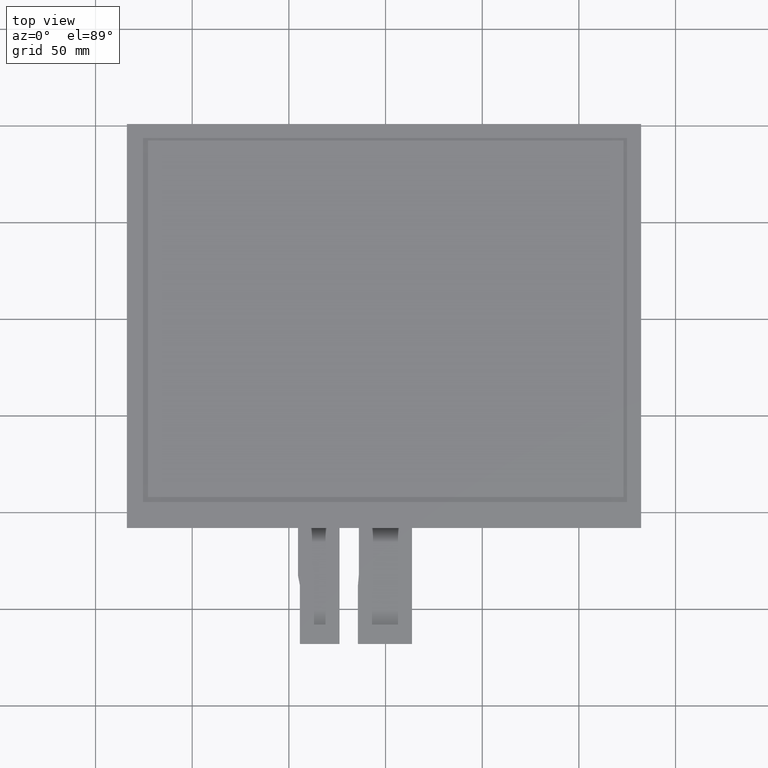
[diagram: clean part render]
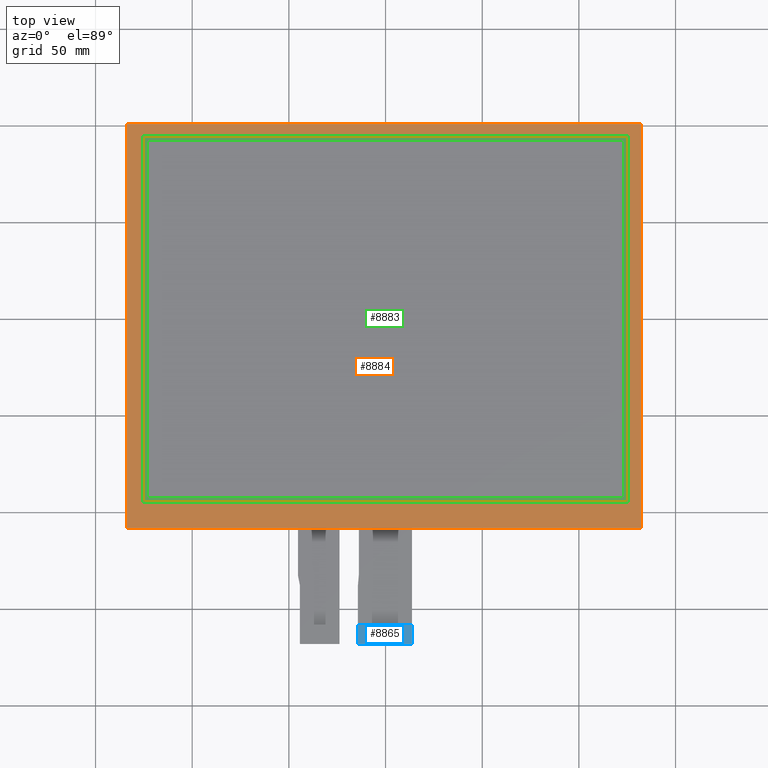
[diagram: same view with three faces highlighted in distinct colors, each labeled with its STEP entity id]
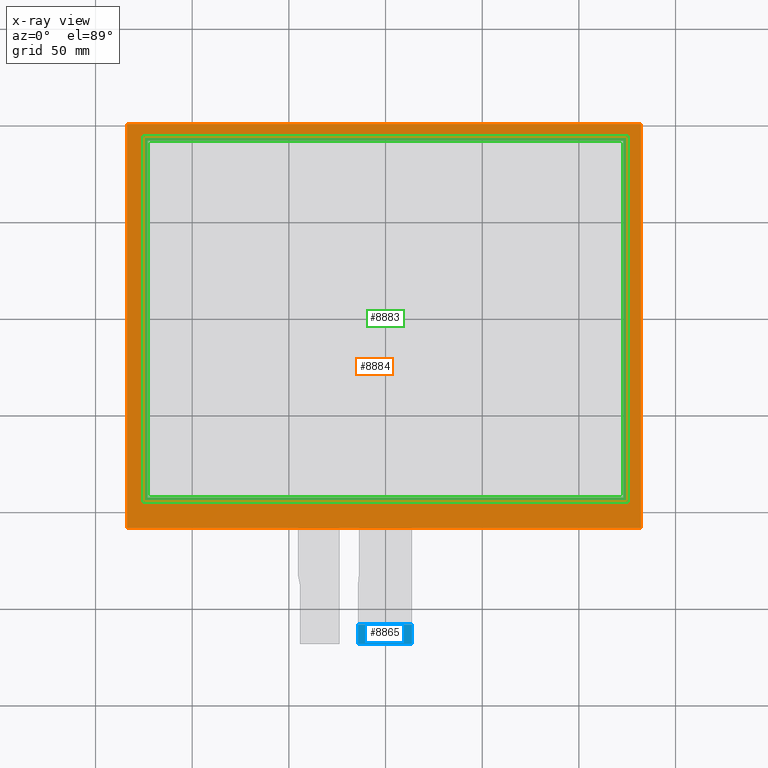
[diagram: x-ray of the same camera — body ghosted, the three highlighted faces saturated]
A machine part, top view with three faces highlighted in distinct colors.
The next image is the same camera in x-ray (body ghosted, the three faces saturated) — at least one of them is partly hidden behind the body in this view.
Their STEP definitions:

[orange] entity #8884 — the highlighted planar face has unit normal (0, 0, 1).
#132=FACE_BOUND('',#1392,.T.);
#546=PLANE('',#9334);
#968=FACE_OUTER_BOUND('',#1391,.T.);
#1391=EDGE_LOOP('',(#8425,#8426,#8427,#8428));
#1392=EDGE_LOOP('',(#8429,#8430,#8431,#8432));
#2617=LINE('',#13897,#3857);
#2621=LINE('',#13905,#3861);
#2624=LINE('',#13911,#3864);
#2627=LINE('',#13916,#3867);
#2629=LINE('',#13922,#3869);
#2630=LINE('',#13924,#3870);
#2631=LINE('',#13926,#3871);
#2632=LINE('',#13927,#3872);
#3857=VECTOR('',#11397,10.);
#3861=VECTOR('',#11403,10.);
#3864=VECTOR('',#11408,10.);
#3867=VECTOR('',#11413,10.);
#3869=VECTOR('',#11419,10.);
#3870=VECTOR('',#11420,10.);
#3871=VECTOR('',#11421,10.);
#3872=VECTOR('',#11422,10.);
#4705=VERTEX_POINT('',#13895);
#4706=VERTEX_POINT('',#13896);
#4709=VERTEX_POINT('',#13904);
#4711=VERTEX_POINT('',#13910);
#4713=VERTEX_POINT('',#13920);
#4714=VERTEX_POINT('',#13921);
#4715=VERTEX_POINT('',#13923);
#4716=VERTEX_POINT('',#13925);
#5945=EDGE_CURVE('',#4705,#4706,#2617,.T.);
#5949=EDGE_CURVE('',#4709,#4705,#2621,.T.);
#5952=EDGE_CURVE('',#4711,#4709,#2624,.T.);
#5955=EDGE_CURVE('',#4706,#4711,#2627,.T.);
#5957=EDGE_CURVE('',#4713,#4714,#2629,.T.);
#5958=EDGE_CURVE('',#4714,#4715,#2630,.T.);
#5959=EDGE_CURVE('',#4715,#4716,#2631,.T.);
#5960=EDGE_CURVE('',#4716,#4713,#2632,.T.);
#8425=ORIENTED_EDGE('',*,*,#5957,.T.);
#8426=ORIENTED_EDGE('',*,*,#5958,.T.);
#8427=ORIENTED_EDGE('',*,*,#5959,.T.);
#8428=ORIENTED_EDGE('',*,*,#5960,.T.);
#8429=ORIENTED_EDGE('',*,*,#5945,.T.);
#8430=ORIENTED_EDGE('',*,*,#5955,.T.);
#8431=ORIENTED_EDGE('',*,*,#5952,.T.);
#8432=ORIENTED_EDGE('',*,*,#5949,.T.);
#8884=ADVANCED_FACE('',(#968,#132),#546,.T.);
#9334=AXIS2_PLACEMENT_3D('',#13919,#11417,#11418);
#11397=DIRECTION('',(-1.87577279767714E-16,1.,0.));
#11403=DIRECTION('',(-1.,-1.41655250350897E-16,0.));
#11408=DIRECTION('',(9.37886398838569E-17,-1.,0.));
#11413=DIRECTION('',(1.,0.,0.));
#11417=DIRECTION('center_axis',(0.,0.,1.));
#11418=DIRECTION('ref_axis',(1.,0.,0.));
#11419=DIRECTION('',(-1.,0.,0.));
#11420=DIRECTION('',(1.69986300421077E-16,-1.,0.));
#11421=DIRECTION('',(1.,2.0034099692484E-16,0.));
#11422=DIRECTION('',(0.,1.,0.));
#13895=CARTESIAN_POINT('',(-125.4,-94.65,0.));
#13896=CARTESIAN_POINT('',(-125.4,94.75,0.));
#13897=CARTESIAN_POINT('',(-125.4,-49.1,0.));
#13904=CARTESIAN_POINT('',(125.4,-94.65,0.));
#13905=CARTESIAN_POINT('',(62.3,-94.65,0.));
#13910=CARTESIAN_POINT('',(125.4,94.75,0.));
#13911=CARTESIAN_POINT('',(125.4,45.6,0.));
#13916=CARTESIAN_POINT('',(-63.1,94.75,0.));
#13919=CARTESIAN_POINT('Origin',(-0.800000000000018,-3.54999999999998,0.));
#13920=CARTESIAN_POINT('',(132.2,100.95,0.));
#13921=CARTESIAN_POINT('',(-133.8,100.95,0.));
#13922=CARTESIAN_POINT('',(132.2,100.95,0.));
#13923=CARTESIAN_POINT('',(-133.8,-108.05,0.));
#13924=CARTESIAN_POINT('',(-133.8,100.95,0.));
#13925=CARTESIAN_POINT('',(132.2,-108.05,0.));
#13926=CARTESIAN_POINT('',(-133.8,-108.05,0.));
#13927=CARTESIAN_POINT('',(132.2,-108.05,0.));

[blue] entity #8865 — the highlighted planar face has unit normal (0, 0, 1).
#527=PLANE('',#9315);
#949=FACE_OUTER_BOUND('',#1371,.T.);
#1371=EDGE_LOOP('',(#8333,#8334,#8335,#8336,#8337,#8338));
#1794=LINE('',#12245,#3034);
#1805=LINE('',#12271,#3045);
#2581=LINE('',#13824,#3821);
#2587=LINE('',#13834,#3827);
#3034=VECTOR('',#9760,10.);
#3045=VECTOR('',#9781,10.);
#3821=VECTOR('',#11329,10.);
#3827=VECTOR('',#11337,10.);
#3885=CIRCLE('',#8920,0.2);
#3887=CIRCLE('',#8925,0.2);
#4059=VERTEX_POINT('',#11792);
#4060=VERTEX_POINT('',#11793);
#4284=VERTEX_POINT('',#12243);
#4287=VERTEX_POINT('',#12253);
#4294=VERTEX_POINT('',#12269);
#4685=VERTEX_POINT('',#13823);
#4894=EDGE_CURVE('',#4059,#4060,#3885,.T.);
#5120=EDGE_CURVE('',#4059,#4284,#1794,.T.);
#5124=EDGE_CURVE('',#4287,#4284,#3887,.T.);
#5133=EDGE_CURVE('',#4287,#4294,#1805,.T.);
#5909=EDGE_CURVE('',#4685,#4060,#2581,.T.);
#5915=EDGE_CURVE('',#4294,#4685,#2587,.T.);
#8333=ORIENTED_EDGE('',*,*,#4894,.F.);
#8334=ORIENTED_EDGE('',*,*,#5120,.T.);
#8335=ORIENTED_EDGE('',*,*,#5124,.F.);
#8336=ORIENTED_EDGE('',*,*,#5133,.T.);
#8337=ORIENTED_EDGE('',*,*,#5915,.T.);
#8338=ORIENTED_EDGE('',*,*,#5909,.T.);
#8865=ADVANCED_FACE('',(#949),#527,.T.);
#8920=AXIS2_PLACEMENT_3D('',#11794,#9530,#9531);
#8925=AXIS2_PLACEMENT_3D('',#12254,#9768,#9769);
#9315=AXIS2_PLACEMENT_3D('',#13835,#11338,#11339);
#9530=DIRECTION('center_axis',(0.,0.,-1.));
#9531=DIRECTION('ref_axis',(-0.707106781186493,-0.707106781186602,0.));
#9760=DIRECTION('',(1.,0.,0.));
#9768=DIRECTION('center_axis',(0.,0.,-1.));
#9769=DIRECTION('ref_axis',(0.707106781186493,-0.707106781186602,0.));
#9781=DIRECTION('',(0.,1.,0.));
#11329=DIRECTION('',(2.22044604925031E-16,-1.,0.));
#11337=DIRECTION('',(-1.,0.,0.));
#11338=DIRECTION('center_axis',(0.,0.,1.));
#11339=DIRECTION('ref_axis',(1.,0.,0.));
#11792=CARTESIAN_POINT('',(-14.1,-168.05,-0.8));
#11793=CARTESIAN_POINT('',(-14.3,-167.85,-0.8));
#11794=CARTESIAN_POINT('Origin',(-14.1,-167.85,-0.8));
#12243=CARTESIAN_POINT('',(13.5,-168.05,-0.8));
#12245=CARTESIAN_POINT('',(-14.3,-168.05,-0.8));
#12253=CARTESIAN_POINT('',(13.7,-167.85,-0.8));
#12254=CARTESIAN_POINT('Origin',(13.5,-167.85,-0.8));
#12269=CARTESIAN_POINT('',(13.7,-158.05,-0.8));
#12271=CARTESIAN_POINT('',(13.7,-168.05,-0.8));
#13823=CARTESIAN_POINT('',(-14.3,-158.05,-0.8));
#13824=CARTESIAN_POINT('',(-14.3,-158.05,-0.8));
#13834=CARTESIAN_POINT('',(13.7,-158.05,-0.8));
#13835=CARTESIAN_POINT('Origin',(-0.299999999999994,-163.05,-0.8));

[green] entity #8883 — the highlighted planar face has unit normal (0, 0, -1).
#131=FACE_BOUND('',#1390,.T.);
#545=PLANE('',#9333);
#967=FACE_OUTER_BOUND('',#1389,.T.);
#1389=EDGE_LOOP('',(#8417,#8418,#8419,#8420));
#1390=EDGE_LOOP('',(#8421,#8422,#8423,#8424));
#2607=LINE('',#13877,#3847);
#2611=LINE('',#13884,#3851);
#2614=LINE('',#13890,#3854);
#2616=LINE('',#13893,#3856);
#2619=LINE('',#13901,#3859);
#2623=LINE('',#13908,#3863);
#2626=LINE('',#13914,#3866);
#2628=LINE('',#13917,#3868);
#3847=VECTOR('',#11379,10.);
#3851=VECTOR('',#11385,10.);
#3854=VECTOR('',#11390,10.);
#3856=VECTOR('',#11394,10.);
#3859=VECTOR('',#11399,10.);
#3863=VECTOR('',#11405,10.);
#3866=VECTOR('',#11410,10.);
#3868=VECTOR('',#11414,10.);
#4699=VERTEX_POINT('',#13874);
#4700=VERTEX_POINT('',#13876);
#4702=VERTEX_POINT('',#13882);
#4704=VERTEX_POINT('',#13888);
#4707=VERTEX_POINT('',#13898);
#4708=VERTEX_POINT('',#13900);
#4710=VERTEX_POINT('',#13906);
#4712=VERTEX_POINT('',#13912);
#5935=EDGE_CURVE('',#4699,#4700,#2607,.T.);
#5939=EDGE_CURVE('',#4702,#4699,#2611,.T.);
#5942=EDGE_CURVE('',#4704,#4702,#2614,.T.);
#5944=EDGE_CURVE('',#4700,#4704,#2616,.T.);
#5947=EDGE_CURVE('',#4707,#4708,#2619,.T.);
#5951=EDGE_CURVE('',#4710,#4707,#2623,.T.);
#5954=EDGE_CURVE('',#4712,#4710,#2626,.T.);
#5956=EDGE_CURVE('',#4708,#4712,#2628,.T.);
#8417=ORIENTED_EDGE('',*,*,#5956,.F.);
#8418=ORIENTED_EDGE('',*,*,#5947,.F.);
#8419=ORIENTED_EDGE('',*,*,#5951,.F.);
#8420=ORIENTED_EDGE('',*,*,#5954,.F.);
#8421=ORIENTED_EDGE('',*,*,#5944,.F.);
#8422=ORIENTED_EDGE('',*,*,#5935,.F.);
#8423=ORIENTED_EDGE('',*,*,#5939,.F.);
#8424=ORIENTED_EDGE('',*,*,#5942,.F.);
#8883=ADVANCED_FACE('',(#967,#131),#545,.F.);
#9333=AXIS2_PLACEMENT_3D('',#13918,#11415,#11416);
#11379=DIRECTION('',(1.,0.,0.));
#11385=DIRECTION('',(0.,-1.,0.));
#11390=DIRECTION('',(-1.,0.,0.));
#11394=DIRECTION('',(0.,1.,0.));
#11399=DIRECTION('',(-1.87577279767714E-16,1.,0.));
#11405=DIRECTION('',(-1.,-1.41655250350897E-16,0.));
#11410=DIRECTION('',(9.37886398838569E-17,-1.,0.));
#11414=DIRECTION('',(1.,0.,0.));
#11415=DIRECTION('center_axis',(0.,0.,-1.));
#11416=DIRECTION('ref_axis',(-1.,0.,0.));
#13874=CARTESIAN_POINT('',(-123.,-92.25,-0.1));
#13876=CARTESIAN_POINT('',(123.,-92.25,-0.1));
#13877=CARTESIAN_POINT('',(123.,-92.25,-0.1));
#13882=CARTESIAN_POINT('',(-123.,92.25,-0.1));
#13884=CARTESIAN_POINT('',(-123.,-92.25,-0.1));
#13888=CARTESIAN_POINT('',(123.,92.25,-0.1));
#13890=CARTESIAN_POINT('',(-123.,92.25,-0.1));
#13893=CARTESIAN_POINT('',(123.,92.25,-0.1));
#13898=CARTESIAN_POINT('',(-125.4,-94.65,-0.1));
#13900=CARTESIAN_POINT('',(-125.4,94.75,-0.1));
#13901=CARTESIAN_POINT('',(-125.4,94.75,-0.1));
#13906=CARTESIAN_POINT('',(125.4,-94.65,-0.1));
#13908=CARTESIAN_POINT('',(-125.4,-94.65,-0.1));
#13912=CARTESIAN_POINT('',(125.4,94.75,-0.1));
#13914=CARTESIAN_POINT('',(125.4,-94.65,-0.1));
#13917=CARTESIAN_POINT('',(125.4,94.75,-0.1));
#13918=CARTESIAN_POINT('Origin',(-1.77635683940025E-14,0.0500000000000078,
-0.1));